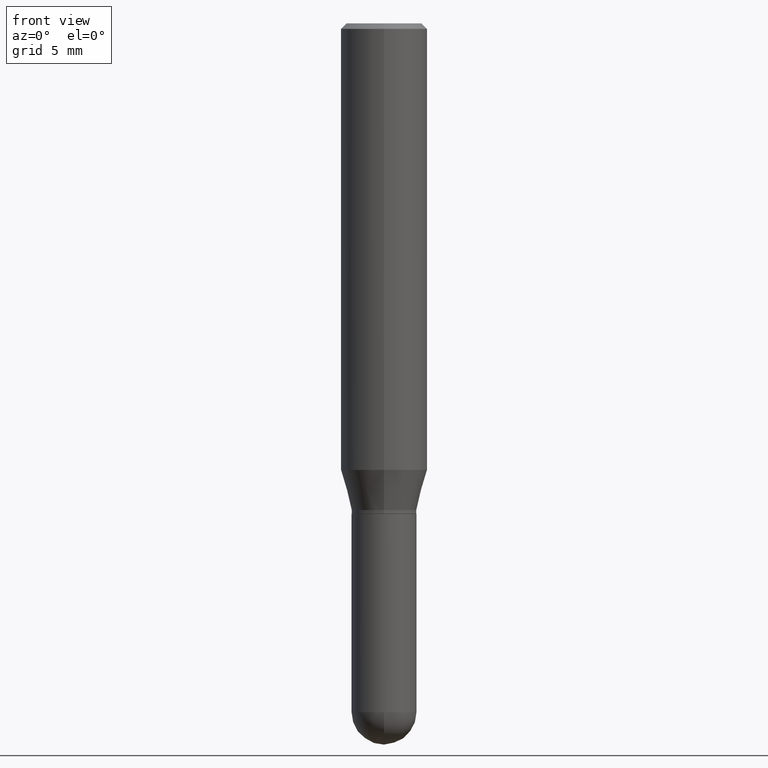
[diagram: clean part render]
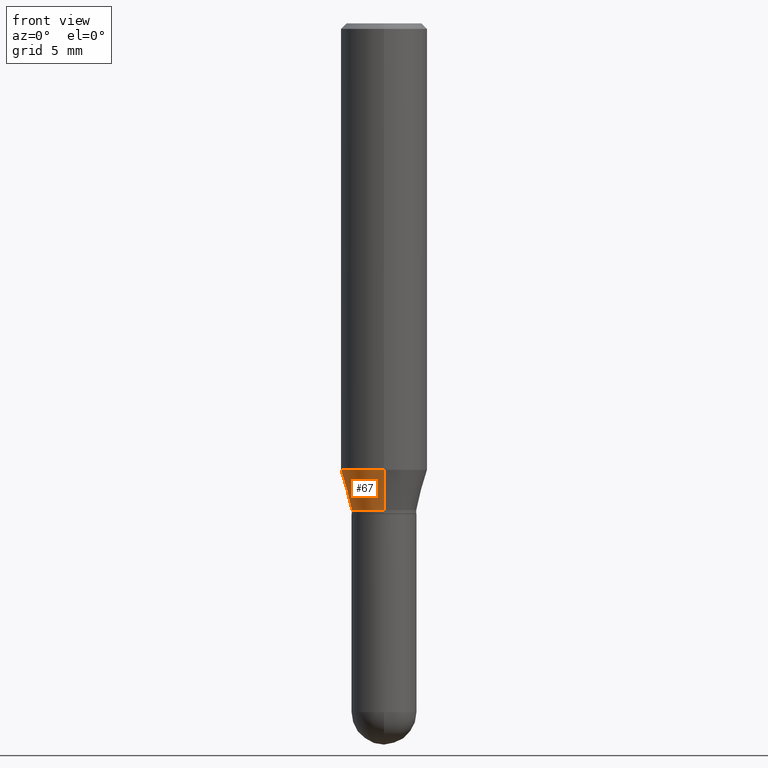
[diagram: same view with one face highlighted and labeled with its STEP entity id]
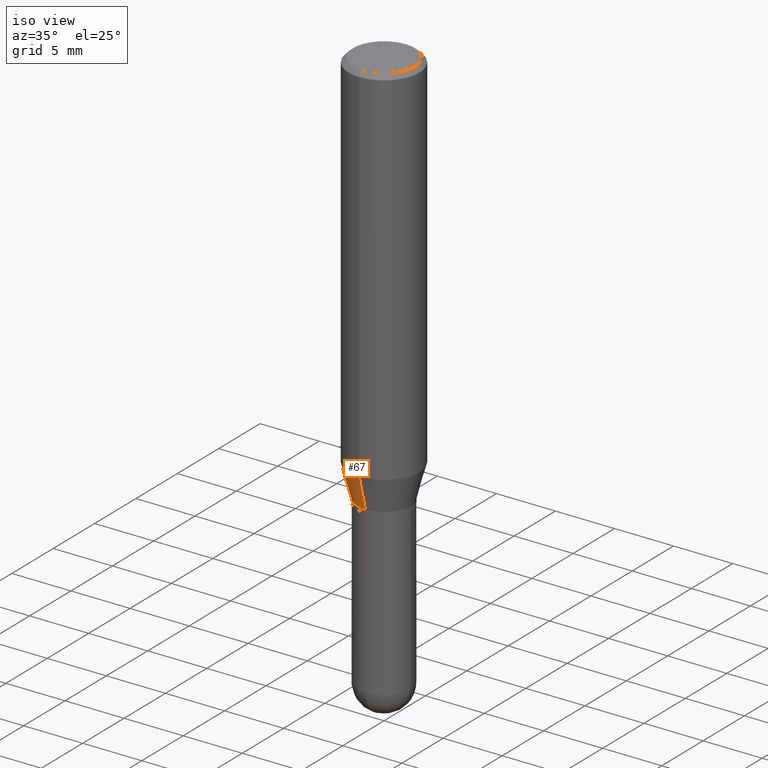
[diagram: same view with one face highlighted and labeled with its STEP entity id]
A machine part, front view. The second image highlights one B-rep face of the part: STEP entity #67.
A second angle (iso view) of the same face is appended — the face is thin or edge-on in the first view.
In plain terms, the highlighted conical surface has half-angle 15 deg.
Its self-contained STEP definition (entity closure, byte-faithful):
#5 = CARTESIAN_POINT ( 'NONE',  ( 2.980335345857895291E-29, -4.253640201139528702E-15, -1.218504501176718602 ) ) ;
#8 = EDGE_CURVE ( 'NONE', #154, #424, #318, .T. ) ;
#52 = VERTEX_POINT ( 'NONE', #201 ) ;
#67 = ADVANCED_FACE ( 'NONE', ( #244 ), #89, .T. ) ;
#71 = CARTESIAN_POINT ( 'NONE',  ( 8.391509709327078780E-16, 0.1180999999999957362, -1.218504501176718824 ) ) ;
#89 = CONICAL_SURFACE ( 'NONE', #96, 0.08859999999999991493, 0.2617993877991507401 ) ;
#95 = DIRECTION ( 'NONE',  ( -6.982962677686264344E-15, -1.000000000000000000, 3.083349879982241481E-15 ) ) ;
#96 = AXIS2_PLACEMENT_3D ( 'NONE', #426, #196, #468 ) ;
#102 = DIRECTION ( 'NONE',  ( -2.445896049608158074E-29, 3.490869501944193410E-15, 1.000000000000000000 ) ) ;
#122 = DIRECTION ( 'NONE',  ( -6.982962677686265922E-15, -1.000000000000000000, 3.469747663417777397E-15 ) ) ;
#124 = DIRECTION ( 'NONE',  ( 1.839019923739603471E-15, 0.2588190451025254024, 0.9659258262890670910 ) ) ;
#144 = CARTESIAN_POINT ( 'NONE',  ( 3.249617491509398652E-29, -4.637969220283055962E-15, -1.328600000000000225 ) ) ;
#149 = AXIS2_PLACEMENT_3D ( 'NONE', #144, #102, #95 ) ;
#154 = VERTEX_POINT ( 'NONE', #371 ) ;
#156 = ORIENTED_EDGE ( 'NONE', *, *, #297, .T. ) ;
#165 = DIRECTION ( 'NONE',  ( -2.445896049608158074E-29, 3.490869501944193410E-15, 1.000000000000000000 ) ) ;
#167 = VECTOR ( 'NONE', #124, 39.37007874015748143 ) ;
#196 = DIRECTION ( 'NONE',  ( -2.445896049608158074E-29, 3.490869501944193410E-15, 1.000000000000000000 ) ) ;
#201 = CARTESIAN_POINT ( 'NONE',  ( -8.246878922347182859E-16, -0.1181000000000042710, -1.218504501176718158 ) ) ;
#204 = AXIS2_PLACEMENT_3D ( 'NONE', #5, #165, #122 ) ;
#215 = DIRECTION ( 'NONE',  ( -1.807323732225332900E-15, -0.2588190451025185745, 0.9659258262890687563 ) ) ;
#230 = ORIENTED_EDGE ( 'NONE', *, *, #256, .T. ) ;
#244 = FACE_OUTER_BOUND ( 'NONE', #484, .T. ) ;
#256 = EDGE_CURVE ( 'NONE', #454, #52, #328, .T. ) ;
#274 = VECTOR ( 'NONE', #215, 39.37007874015748854 ) ;
#297 = EDGE_CURVE ( 'NONE', #154, #454, #500, .T. ) ;
#318 = LINE ( 'NONE', #434, #167 ) ;
#328 = LINE ( 'NONE', #411, #274 ) ;
#362 = CIRCLE ( 'NONE', #204, 0.1180999999999999966 ) ;
#371 = CARTESIAN_POINT ( 'NONE',  ( 7.343459174080941908E-16, 0.08859999999999526588, -1.328600000000000447 ) ) ;
#403 = ORIENTED_EDGE ( 'NONE', *, *, #8, .F. ) ;
#411 = CARTESIAN_POINT ( 'NONE',  ( -6.186904932429700179E-16, -0.08860000000000455012, -1.328599999999999781 ) ) ;
#424 = VERTEX_POINT ( 'NONE', #71 ) ;
#426 = CARTESIAN_POINT ( 'NONE',  ( 3.249617491509398652E-29, -4.637969220283055962E-15, -1.328600000000000225 ) ) ;
#434 = CARTESIAN_POINT ( 'NONE',  ( 6.295408638834805036E-16, 0.08859999999999526588, -1.328600000000000447 ) ) ;
#454 = VERTEX_POINT ( 'NONE', #512 ) ;
#458 = EDGE_CURVE ( 'NONE', #424, #52, #362, .T. ) ;
#468 = DIRECTION ( 'NONE',  ( -6.982962677686264344E-15, -1.000000000000000000, 3.083349879982241481E-15 ) ) ;
#484 = EDGE_LOOP ( 'NONE', ( #403, #156, #230, #505 ) ) ;
#500 = CIRCLE ( 'NONE', #149, 0.08859999999999991493 ) ;
#505 = ORIENTED_EDGE ( 'NONE', *, *, #458, .F. ) ;
#512 = CARTESIAN_POINT ( 'NONE',  ( -6.186904932429700179E-16, -0.08860000000000455012, -1.328599999999999781 ) ) ;